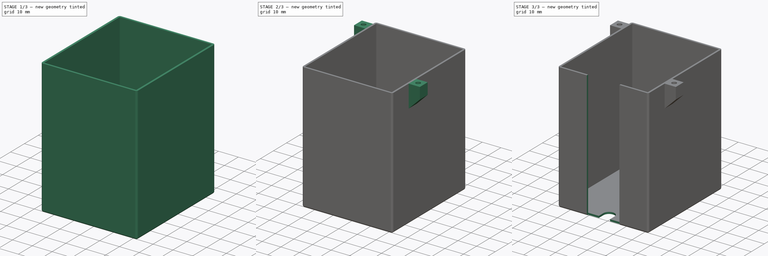
[diagram: build sequence overview — one tinted view per stage of 3, left to right]
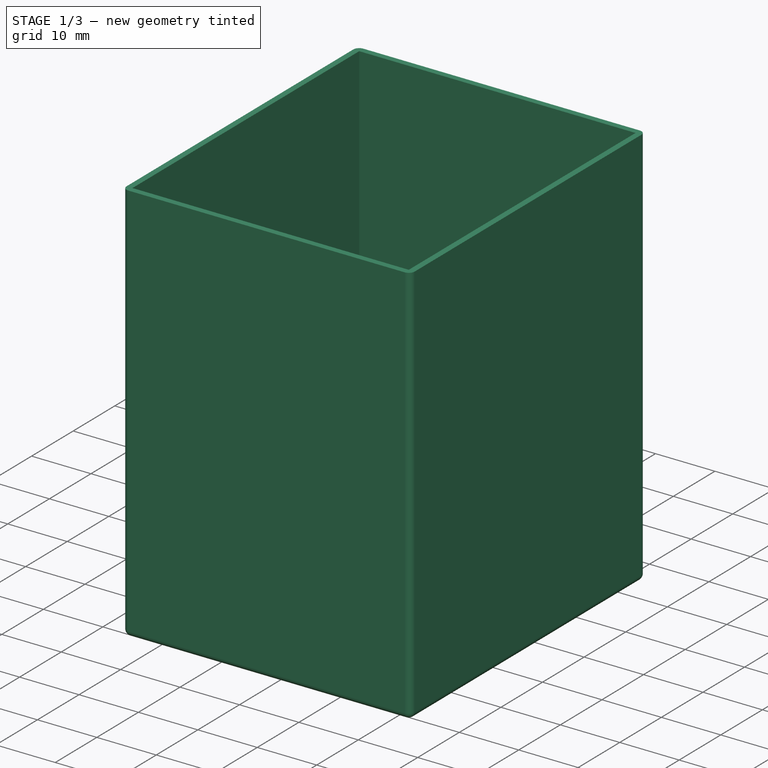
[diagram: stage 1 of 3 — iso view after this stage's code; geometry added in this stage tinted green]
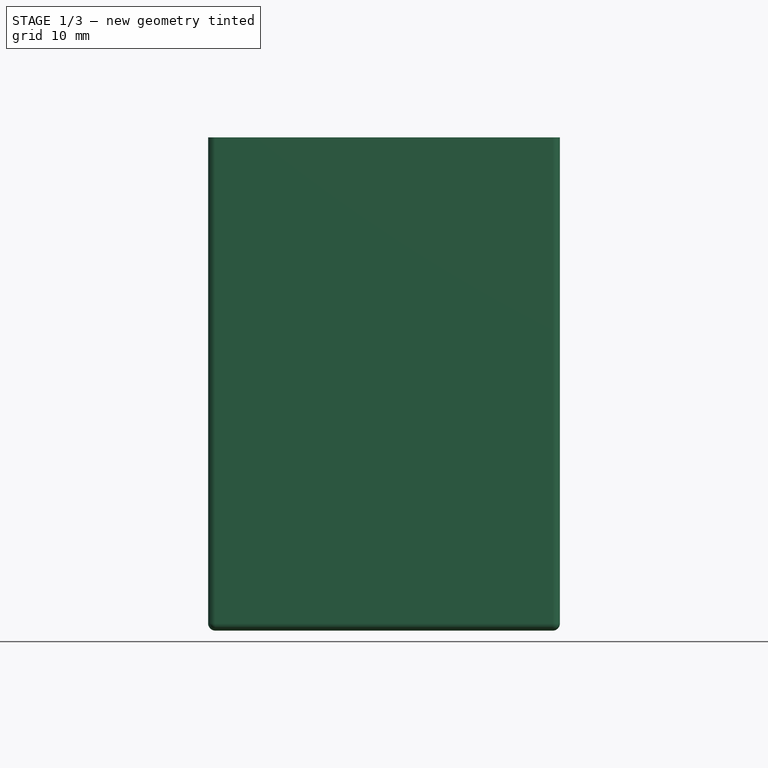
[diagram: stage 1 of 3 — front view after this stage's code; geometry added in this stage tinted green]
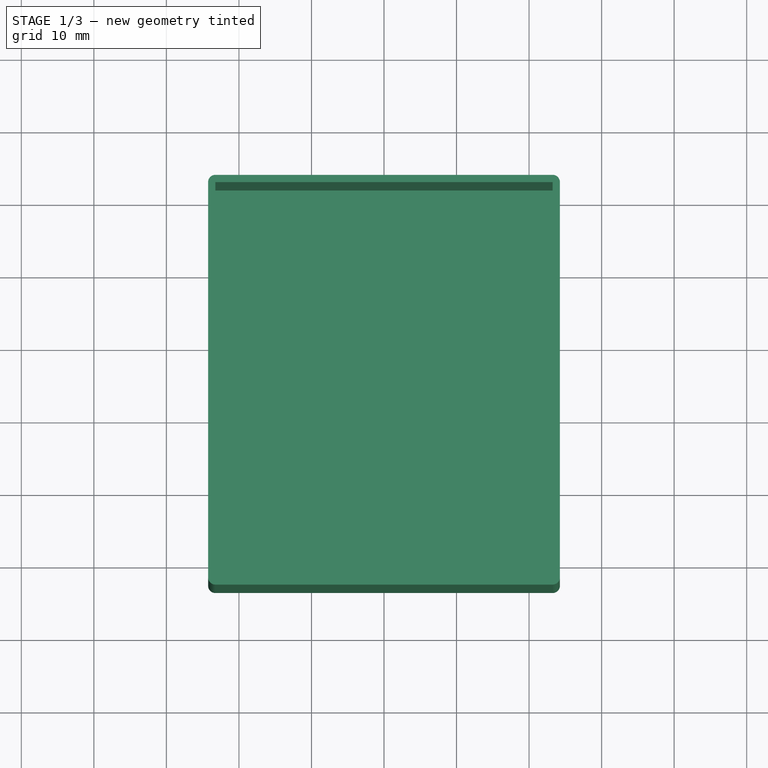
[diagram: stage 1 of 3 — top view after this stage's code; geometry added in this stage tinted green]
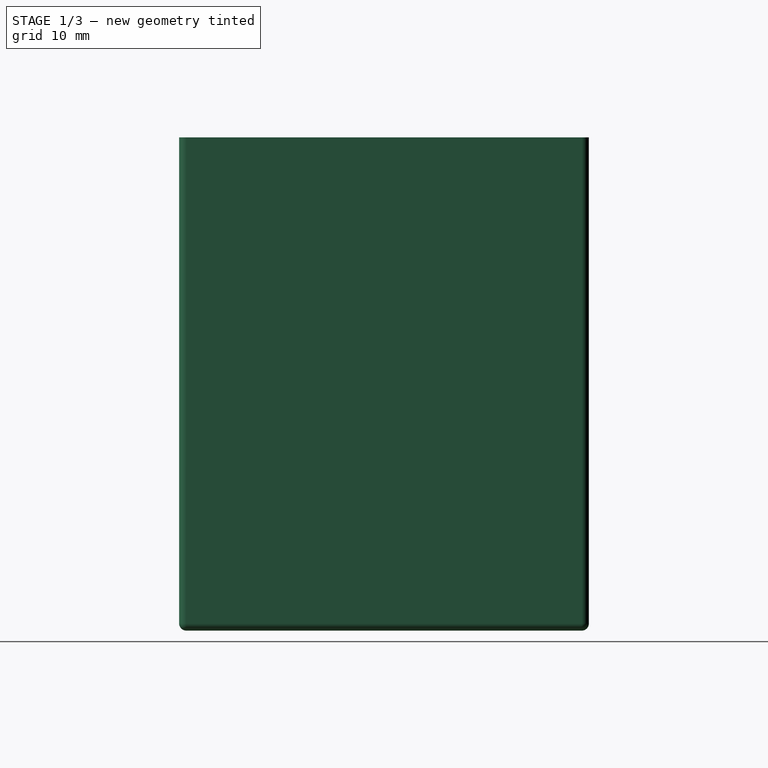
[diagram: stage 1 of 3 — right view after this stage's code; geometry added in this stage tinted green]
FCSTD DOCUMENT  (FreeCAD 0.16R)
Label: cover
License: All rights reserved
LicenseURL: http://en.wikipedia.org/wiki/All_rights_reserved
objects: Sketcher::SketchObject×5, PartDesign::Pocket×3, PartDesign::Pad×2, Part::Thickness×1, PartDesign::Chamfer×1
note: 17 computed .brp shape members not serialized (recipe doc carries the construction recipe); baked Part::Feature solids carry a one-line shape summary decoded from their .brp

FEATURE [Sketcher::SketchObject] Sketch
  sketch-geometry (4):
    g0: LineSegment StartX=-23.25 StartY=22 StartZ=0 EndX=23.25 EndY=22 EndZ=0
    g1: LineSegment StartX=23.25 StartY=22 StartZ=0 EndX=23.25 EndY=-32.5 EndZ=0
    g2: LineSegment StartX=23.25 StartY=-32.5 StartZ=0 EndX=-23.25 EndY=-32.5 EndZ=0
    g3: LineSegment StartX=-23.25 StartY=-32.5 StartZ=0 EndX=-23.25 EndY=22 EndZ=0
  constraints (12):
    c: Coincident(g0,g1)
    c: Coincident(g1,g2)
    c: Coincident(g2,g3)
    c: Coincident(g3,g0)
    c: Horizontal(g0)
    c: Horizontal(g2)
    c: Vertical(g1)
    c: Vertical(g3)
    c: DistanceX(g0,g0) = 46.5
    c: DistanceY(g3,g3) = 54.5
    c: Symmetric(g0,g0,g-2)
    c: DistanceY(g0) = 22
FEATURE [PartDesign::Pad] Pad
  Length = 67
  Length2 = 100
  Sketch = -> Sketch
  Type = 0
FEATURE [Part::Thickness] Thickness
  Faces = -> Pad [Face6]
  Intersection = false
  Join = 0
  Mode = 0
  SelfIntersection = false
  Value = 1
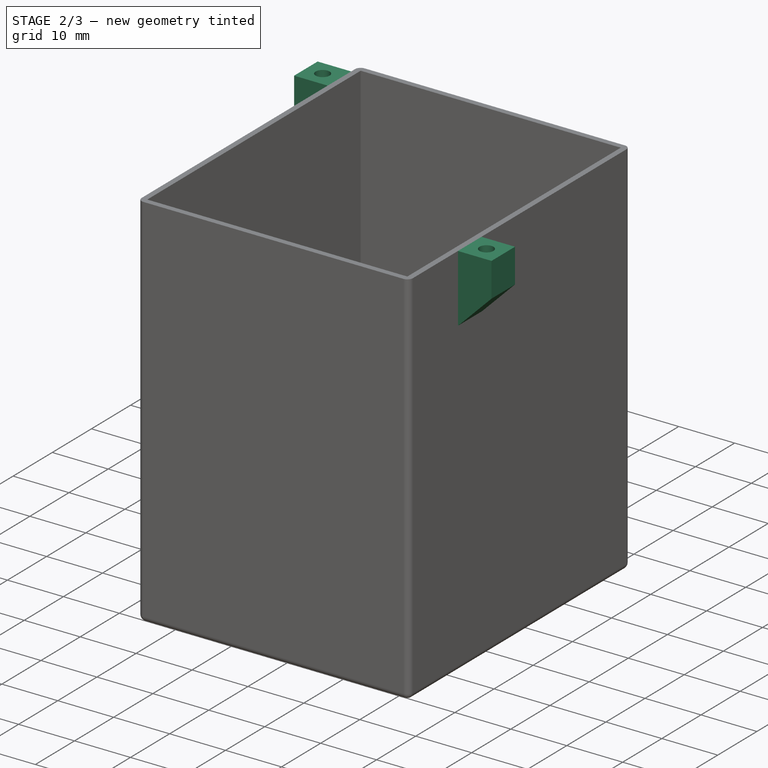
[diagram: stage 2 of 3 — iso view after this stage's code; geometry added in this stage tinted green]
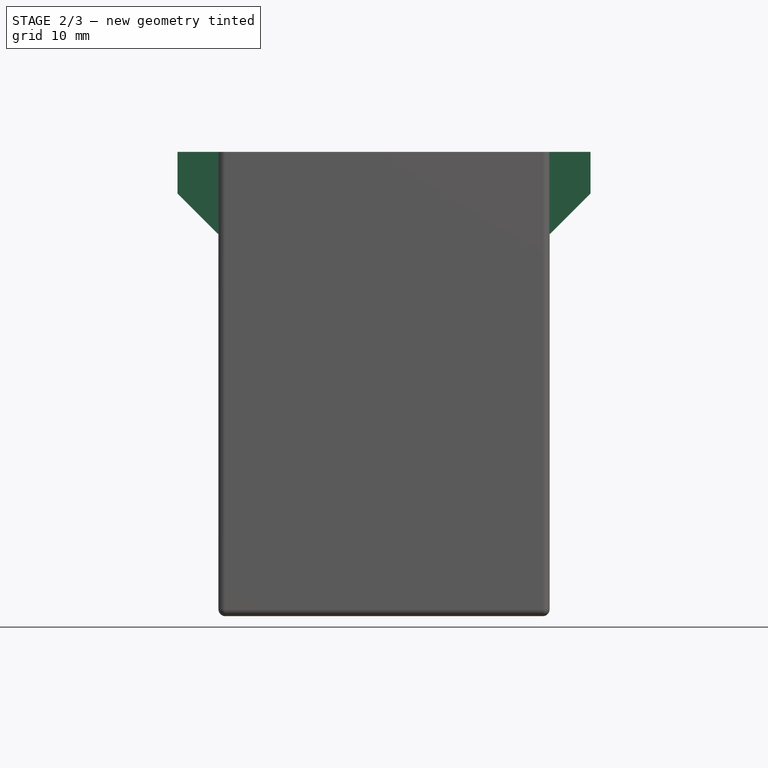
[diagram: stage 2 of 3 — front view after this stage's code; geometry added in this stage tinted green]
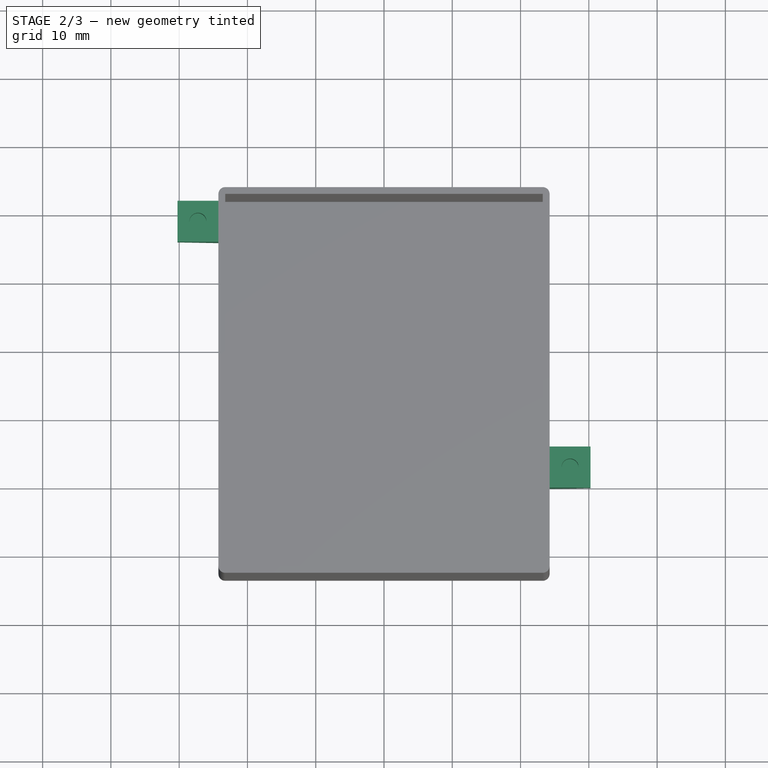
[diagram: stage 2 of 3 — top view after this stage's code; geometry added in this stage tinted green]
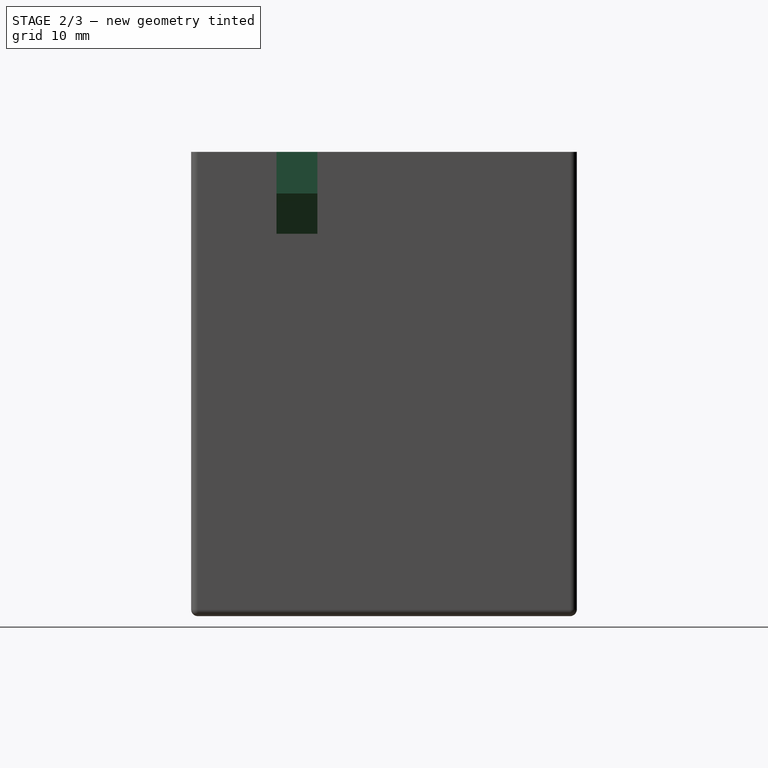
[diagram: stage 2 of 3 — right view after this stage's code; geometry added in this stage tinted green]
FEATURE [Sketcher::SketchObject] Sketch001
  ExternalGeometry = -> [Thickness]
  Placement = pos=(0,0,67) rot=(0,0,1;0rad)
  Support = -> Thickness [Face6]
  sketch-geometry (8):
    g0: LineSegment StartX=-30.25 StartY=21 StartZ=0 EndX=-24.25 EndY=21 EndZ=0
    g1: LineSegment StartX=-24.25 StartY=21 StartZ=0 EndX=-24.25 EndY=15 EndZ=0
    g2: LineSegment StartX=-24.25 StartY=15 StartZ=0 EndX=-30.25 EndY=15 EndZ=0
    g3: LineSegment StartX=-30.25 StartY=15 StartZ=0 EndX=-30.25 EndY=21 EndZ=0
    g4: LineSegment StartX=24.25 StartY=-15 StartZ=0 EndX=30.25 EndY=-15 EndZ=0
    g5: LineSegment StartX=30.25 StartY=-15 StartZ=0 EndX=30.25 EndY=-21 EndZ=0
    g6: LineSegment StartX=30.25 StartY=-21 StartZ=0 EndX=24.25 EndY=-21 EndZ=0
    g7: LineSegment StartX=24.25 StartY=-21 StartZ=0 EndX=24.25 EndY=-15 EndZ=0
  constraints (24):
    c: Coincident(g0,g1)
    c: Coincident(g1,g2)
    c: Coincident(g2,g3)
    c: Coincident(g3,g0)
    c: Horizontal(g0)
    c: Horizontal(g2)
    c: Vertical(g1)
    c: Vertical(g3)
    c: PointOnObject(g1,g-3)
    c: Coincident(g4,g5)
    c: Coincident(g5,g6)
    c: Coincident(g6,g7)
    c: Coincident(g7,g4)
    c: Horizontal(g4)
    c: Horizontal(g6)
    c: Vertical(g5)
    c: Vertical(g7)
    c: PointOnObject(g4,g-4)
    c: Equal(g3,g5)
    c: Equal(g0,g4)
    c: DistanceY(g1) = 15
    c: DistanceY(g4) = -15
    c: DistanceY(g3,g3) = 6
    c: DistanceX(g0,g0) = 6
FEATURE [PartDesign::Pad] Pad001
  Length = 12
  Length2 = 100
  Reversed = true
  Sketch = -> Sketch001
  Type = 0
FEATURE [PartDesign::Chamfer] Chamfer
  Base = -> Pad001 [Edge69,Edge60]
  Size = 5.9
FEATURE [Sketcher::SketchObject] Sketch002
  ExternalGeometry = -> [Chamfer]
  Placement = pos=(0,0,67) rot=(0,0,1;0rad)
  Support = -> Chamfer [Face15]
  sketch-geometry (2):
    g0: Circle CenterX=-27.25 CenterY=18 CenterZ=0 NormalX=0 NormalY=0 NormalZ=1 Radius=1.25
    g1: Circle CenterX=27.25 CenterY=-18 CenterZ=0 NormalX=0 NormalY=0 NormalZ=1 Radius=1.25
  constraints (6):
    c: Equal(g1,g0)
    c: Radius(g0) = 1.25
    c: DistanceY(g0) = 18
    c: DistanceY(g1) = -18
    c: Distance(g0,g-3) = 3
    c: Distance(g1,g-4) = 3
FEATURE [PartDesign::Pocket] Pocket
  Length = 6
  Sketch = -> Sketch002
  Type = 0
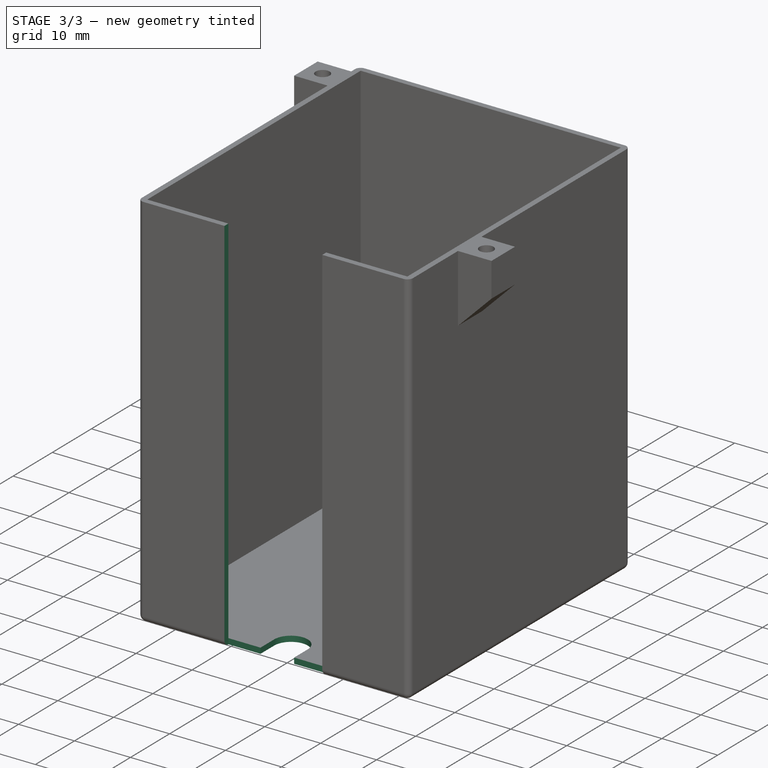
[diagram: stage 3 of 3 — iso view after this stage's code; geometry added in this stage tinted green]
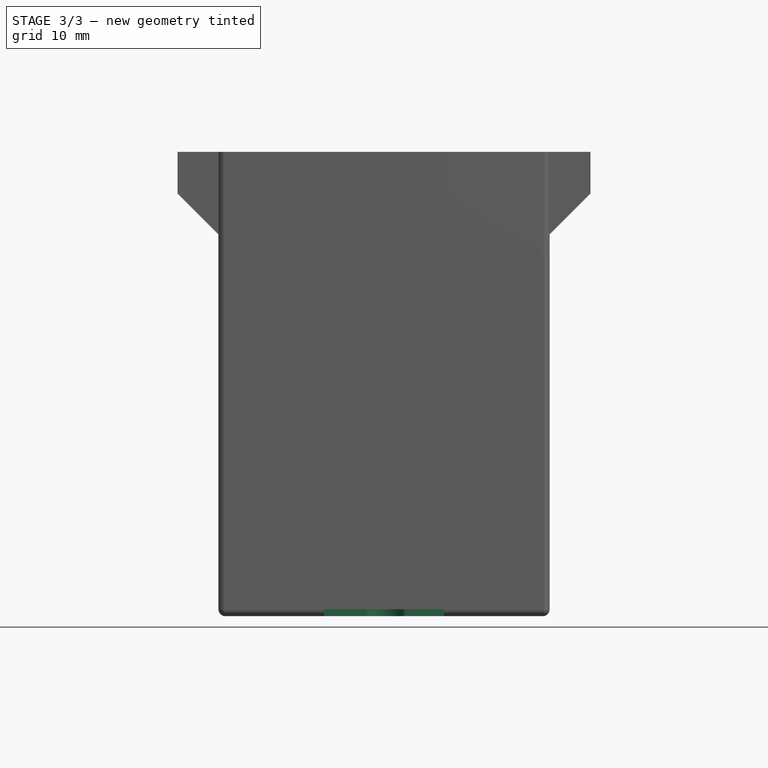
[diagram: stage 3 of 3 — front view after this stage's code; geometry added in this stage tinted green]
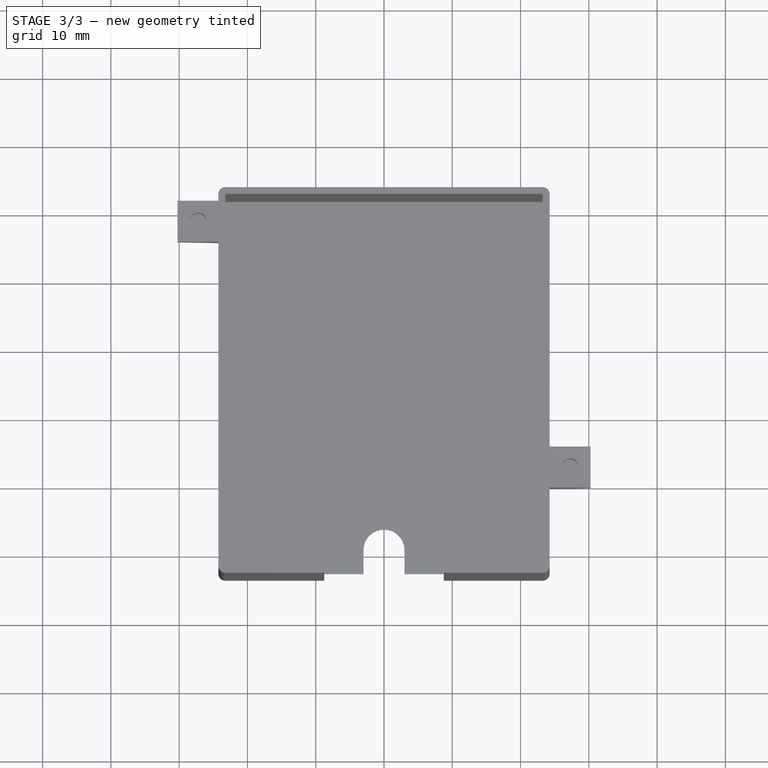
[diagram: stage 3 of 3 — top view after this stage's code; geometry added in this stage tinted green]
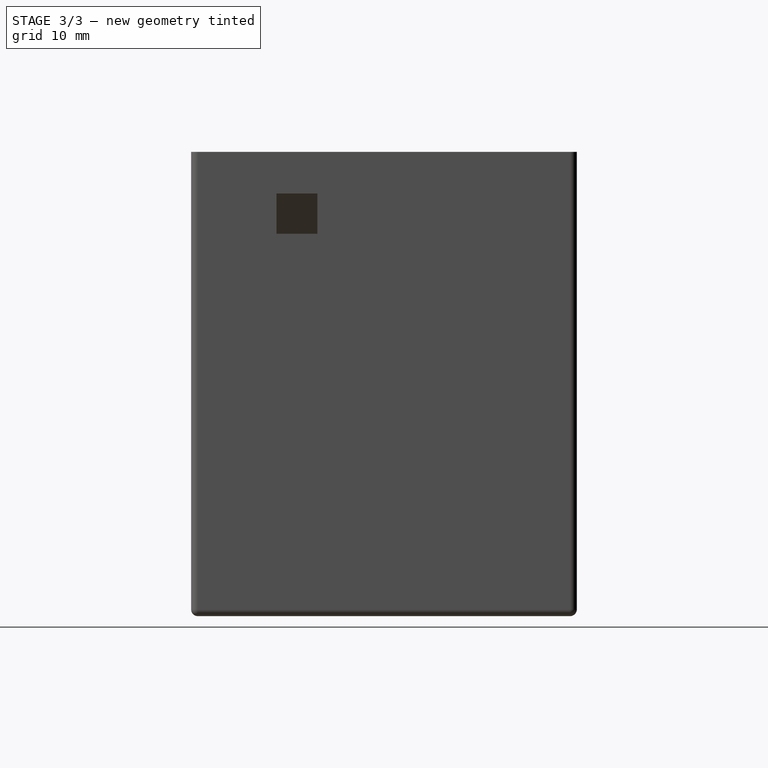
[diagram: stage 3 of 3 — right view after this stage's code; geometry added in this stage tinted green]
FEATURE [Sketcher::SketchObject] Sketch003
  ExternalGeometry = -> [Pocket]
  Placement = pos=(0,-33.5,0) rot=(1,0,0;1.5708rad)
  Support = -> Pocket [Face13]
  sketch-geometry (4):
    g0: LineSegment StartX=-8.75 StartY=67 StartZ=0 EndX=8.75 EndY=67 EndZ=0
    g1: LineSegment StartX=8.75 StartY=67 StartZ=0 EndX=8.75 EndY=-1 EndZ=0
    g2: LineSegment StartX=8.75 StartY=-1 StartZ=0 EndX=-8.75 EndY=-1 EndZ=0
    g3: LineSegment StartX=-8.75 StartY=-1 StartZ=0 EndX=-8.75 EndY=67 EndZ=0
  constraints (12):
    c: Coincident(g0,g1)
    c: Coincident(g1,g2)
    c: Coincident(g2,g3)
    c: Coincident(g3,g0)
    c: Horizontal(g0)
    c: Horizontal(g2)
    c: Vertical(g1)
    c: Vertical(g3)
    c: PointOnObject(g1,g-4)
    c: PointOnObject(g0,g-3)
    c: DistanceX(g2,g2) = 17.5
    c: Symmetric(g1,g2,g-2)
FEATURE [PartDesign::Pocket] Pocket001
  Length = 1
  Sketch = -> Sketch003
  Type = 0
FEATURE [Sketcher::SketchObject] Sketch004
  Placement = pos=(0,0,-1) rot=(1,0,0;3.14159rad)
  Support = -> Pocket001 [Face28]
  sketch-geometry (4):
    g0: ArcOfCircle CenterX=0 CenterY=29 CenterZ=0 NormalX=0 NormalY=0 NormalZ=1 Radius=3 StartAngle=3.14159 EndAngle=6.28319
    g1: ArcOfCircle CenterX=0 CenterY=39 CenterZ=0 NormalX=0 NormalY=0 NormalZ=1 Radius=3 StartAngle=0 EndAngle=3.14159
    g2: LineSegment StartX=3 StartY=29 StartZ=0 EndX=3 EndY=39 EndZ=0
    g3: LineSegment StartX=-3 StartY=29 StartZ=0 EndX=-3 EndY=39 EndZ=0
  constraints (10):
    c: Tangent(g0,g3) = 1.5708
    c: Tangent(g0,g2) = -1.5708
    c: Tangent(g2,g1) = -1.5708
    c: Tangent(g3,g1) = 1.5708
    c: Vertical(g2)
    c: Equal(g0,g1)
    c: PointOnObject(g0,g-2)
    c: Radius(g0) = 3
    c: DistanceY(g0) = 29
    c: Distance(g0,g1) = 10
FEATURE [PartDesign::Pocket] Pocket002
  Length = 1
  Sketch = -> Sketch004
  Type = 0
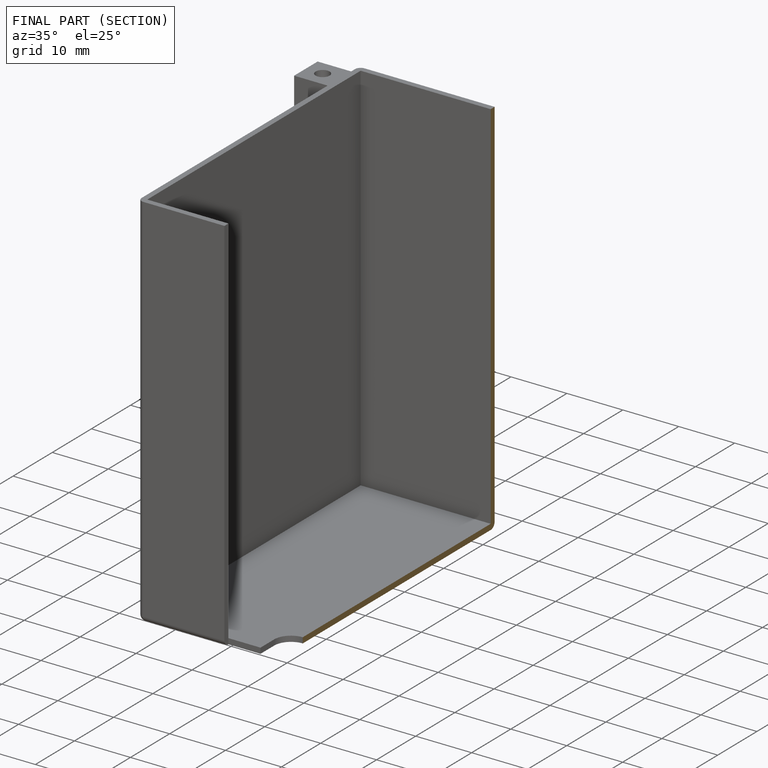
[diagram: finished part — half-section view (interior)]
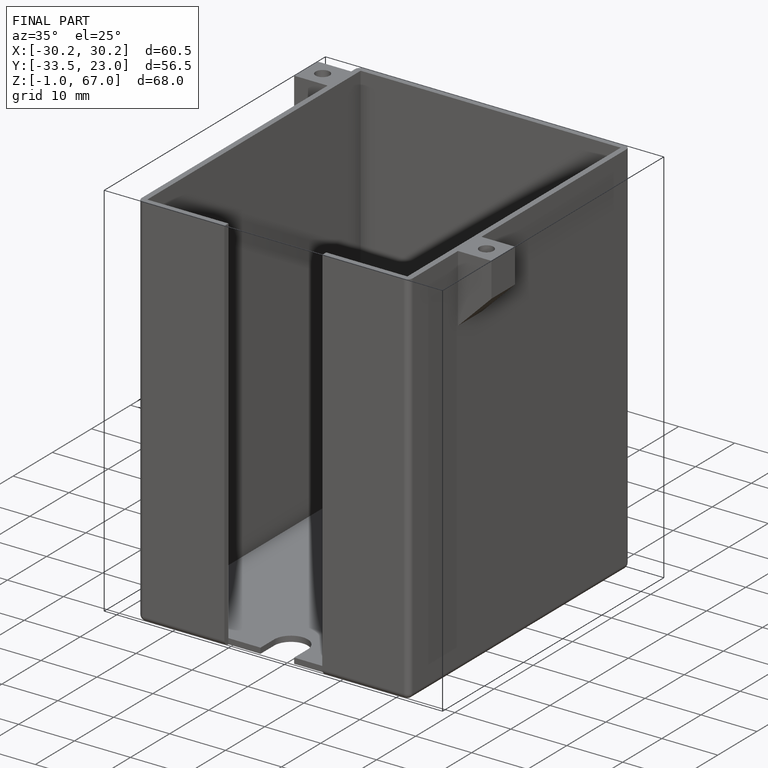
[diagram: finished part — iso view with bounding-box wireframe]
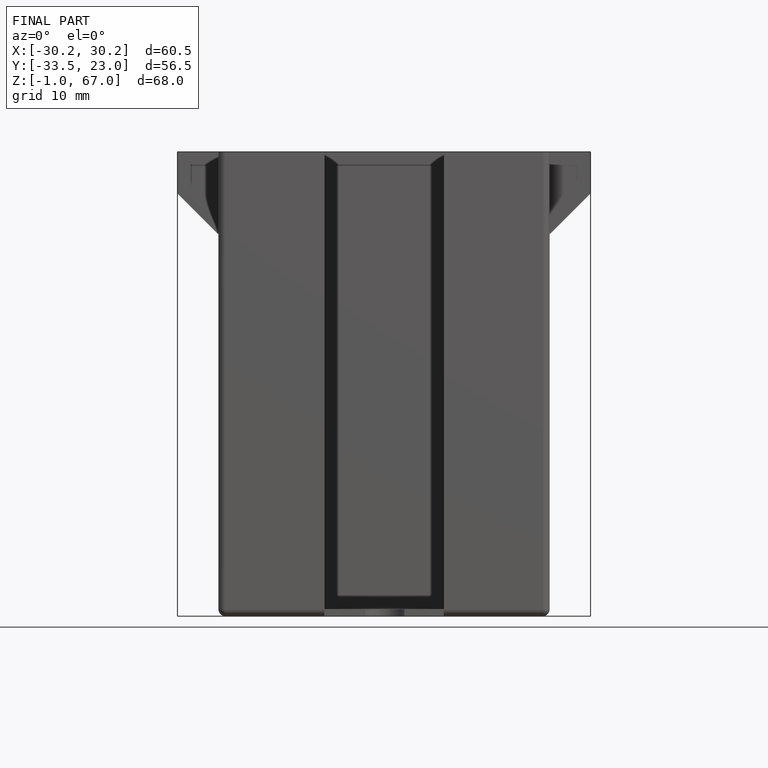
[diagram: finished part — front view with bounding-box wireframe]
